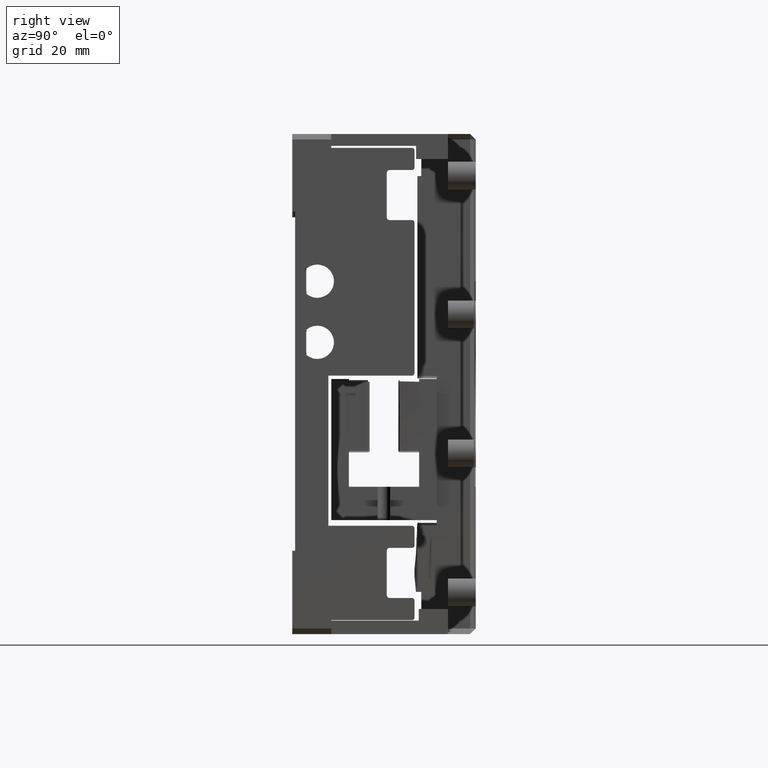
[diagram: clean part render]
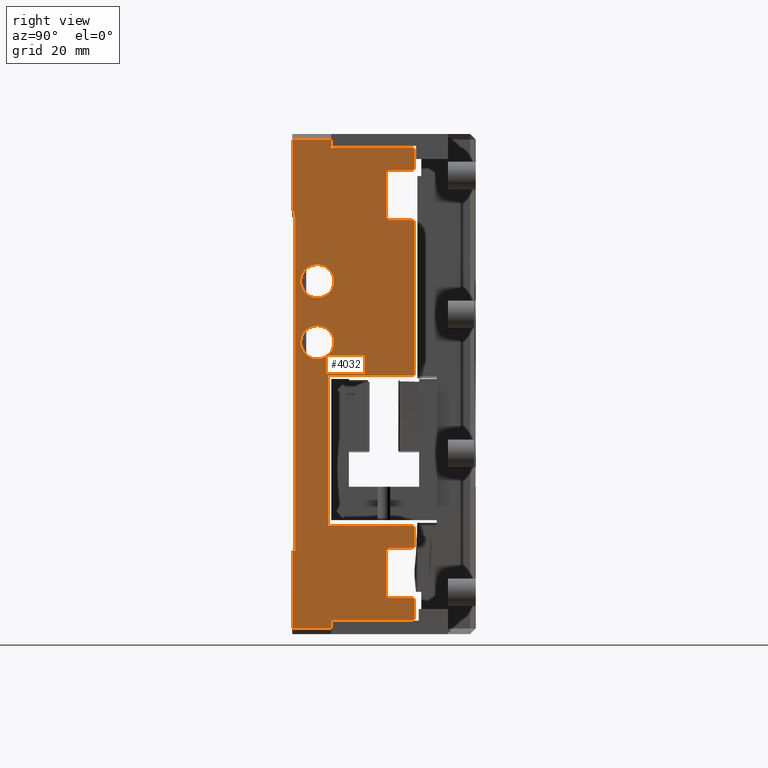
[diagram: same view with one face highlighted and labeled with its STEP entity id]
A machine part, right view. The second image highlights one B-rep face of the part: STEP entity #4032.
In plain terms, the highlighted planar face has unit normal (-1, 0, 0).
Its self-contained STEP definition (entity closure, byte-faithful):
#62 = CARTESIAN_POINT ( 'NONE',  ( 90.00000000000005684, 20.99999999999997868, 19.50000000000007105 ) ) ;
#405 = VECTOR ( 'NONE', #7556, 1000.000000000000000 ) ;
#671 = ORIENTED_EDGE ( 'NONE', *, *, #10774, .F. ) ;
#833 = DIRECTION ( 'NONE',  ( -1.000000000000000000, 5.034521060366343915E-17, 6.757893243623049656E-16 ) ) ;
#894 = DIRECTION ( 'NONE',  ( -5.034521060366351311E-17, -1.000000000000000000, 2.970304752177819825E-33 ) ) ;
#966 = CARTESIAN_POINT ( 'NONE',  ( 90.00000000000000000, 20.99999999999998224, 15.49999999999998757 ) ) ;
#980 = ORIENTED_EDGE ( 'NONE', *, *, #1159, .T. ) ;
#1159 = EDGE_CURVE ( 'NONE', #16432, #19255, #7203, .T. ) ;
#1411 = LINE ( 'NONE', #12128, #5489 ) ;
#1472 = DIRECTION ( 'NONE',  ( 5.034521060366351311E-17, 1.000000000000000000, -2.970304752177819825E-33 ) ) ;
#1571 = VERTEX_POINT ( 'NONE', #28341 ) ;
#1625 = EDGE_CURVE ( 'NONE', #2986, #2986, #24944, .T. ) ;
#1684 = DIRECTION ( 'NONE',  ( -1.000000000000000000, 5.034521060366343915E-17, 6.757893243623049656E-16 ) ) ;
#1791 = VECTOR ( 'NONE', #14237, 1000.000000000000000 ) ;
#1806 = VECTOR ( 'NONE', #19901, 1000.000000000000000 ) ;
#1841 = EDGE_CURVE ( 'NONE', #11449, #15249, #27120, .T. ) ;
#1906 = EDGE_CURVE ( 'NONE', #15102, #21535, #5571, .T. ) ;
#1929 = CARTESIAN_POINT ( 'NONE',  ( 90.00000000000002842, -2.168404344971008868E-14, 89.00000000000000000 ) ) ;
#2209 = AXIS2_PLACEMENT_3D ( 'NONE', #5642, #16347, #2859 ) ;
#2257 = ORIENTED_EDGE ( 'NONE', *, *, #7761, .F. ) ;
#2300 = CIRCLE ( 'NONE', #26172, 2.999999999999995559 ) ;
#2349 = FACE_BOUND ( 'NONE', #8921, .T. ) ;
#2374 = DIRECTION ( 'NONE',  ( -5.034521060366351311E-17, -1.000000000000000000, 2.970304752177819825E-33 ) ) ;
#2384 = DIRECTION ( 'NONE',  ( -5.899875512610681084E-17, -0.000000000000000000, -1.000000000000000000 ) ) ;
#2412 = DIRECTION ( 'NONE',  ( 0.000000000000000000, 0.000000000000000000, -1.000000000000000000 ) ) ;
#2432 = LINE ( 'NONE', #9601, #5857 ) ;
#2454 = DIRECTION ( 'NONE',  ( 0.000000000000000000, 0.000000000000000000, 1.000000000000000000 ) ) ;
#2600 = DIRECTION ( 'NONE',  ( 0.000000000000000000, 0.000000000000000000, -1.000000000000000000 ) ) ;
#2813 = CARTESIAN_POINT ( 'NONE',  ( 90.00000000000002842, 21.49999999999997868, 90.00000000000000000 ) ) ;
#2859 = DIRECTION ( 'NONE',  ( 0.000000000000000000, 0.000000000000000000, 1.000000000000000000 ) ) ;
#2979 = ORIENTED_EDGE ( 'NONE', *, *, #16234, .F. ) ;
#2986 = VERTEX_POINT ( 'NONE', #14009 ) ;
#3148 = VERTEX_POINT ( 'NONE', #24003 ) ;
#3163 = DIRECTION ( 'NONE',  ( -5.034521060366351311E-17, -1.000000000000000000, 2.970304752177819825E-33 ) ) ;
#3222 = ORIENTED_EDGE ( 'NONE', *, *, #12570, .F. ) ;
#3367 = CARTESIAN_POINT ( 'NONE',  ( 90.00000000000000000, 16.49999999999997868, 7.000000000000000000 ) ) ;
#3370 = VERTEX_POINT ( 'NONE', #23362 ) ;
#3603 = EDGE_CURVE ( 'NONE', #16432, #20093, #28885, .T. ) ;
#3609 = VERTEX_POINT ( 'NONE', #24795 ) ;
#3623 = CARTESIAN_POINT ( 'NONE',  ( 90.00000000000002842, 6.499999999999987566, 2.500000000000005329 ) ) ;
#4027 = VERTEX_POINT ( 'NONE', #4099 ) ;
#4032 = ADVANCED_FACE ( 'NONE', ( #4520, #4383, #2349 ), #11136, .F. ) ;
#4072 = ORIENTED_EDGE ( 'NONE', *, *, #12612, .F. ) ;
#4093 = AXIS2_PLACEMENT_3D ( 'NONE', #17846, #7146, #17982 ) ;
#4098 = VERTEX_POINT ( 'NONE', #17739 ) ;
#4099 = CARTESIAN_POINT ( 'NONE',  ( 90.00000000000002842, -0.5000000000000122125, 14.99999999999998579 ) ) ;
#4137 = VERTEX_POINT ( 'NONE', #4249 ) ;
#4249 = CARTESIAN_POINT ( 'NONE',  ( 90.00000000000000000, 21.49999999999997868, 15.99999999999998579 ) ) ;
#4303 = LINE ( 'NONE', #27312, #5089 ) ;
#4383 = FACE_BOUND ( 'NONE', #21882, .T. ) ;
#4494 = CARTESIAN_POINT ( 'NONE',  ( 89.99999999999997158, 20.99999999999998224, 5.999999999999996447 ) ) ;
#4520 = FACE_OUTER_BOUND ( 'NONE', #8517, .T. ) ;
#4538 = CIRCLE ( 'NONE', #8300, 0.5000000000000004441 ) ;
#4566 = CIRCLE ( 'NONE', #23280, 0.5000000000000004441 ) ;
#4646 = CARTESIAN_POINT ( 'NONE',  ( 90.00000000000002842, 16.99999999999997868, 82.99999999999990052 ) ) ;
#4686 = CARTESIAN_POINT ( 'NONE',  ( 90.00000000000002842, -0.5000000000000204281, 90.00000000000000000 ) ) ;
#4920 = ORIENTED_EDGE ( 'NONE', *, *, #5123, .F. ) ;
#5057 = CARTESIAN_POINT ( 'NONE',  ( 90.00000000000002842, 21.49999999999998224, 73.99999999999992895 ) ) ;
#5089 = VECTOR ( 'NONE', #18372, 1000.000000000000000 ) ;
#5123 = EDGE_CURVE ( 'NONE', #24506, #19255, #8614, .T. ) ;
#5244 = ORIENTED_EDGE ( 'NONE', *, *, #22877, .F. ) ;
#5337 = DIRECTION ( 'NONE',  ( -1.000000000000000000, 5.034521060366343915E-17, 6.757893243623049656E-16 ) ) ;
#5338 = CARTESIAN_POINT ( 'NONE',  ( 90.00000000000000000, 21.49999999999997868, 5.999999999999999112 ) ) ;
#5451 = EDGE_CURVE ( 'NONE', #12013, #21191, #7826, .T. ) ;
#5486 = DIRECTION ( 'NONE',  ( 0.000000000000000000, 0.000000000000000000, -1.000000000000000000 ) ) ;
#5489 = VECTOR ( 'NONE', #27770, 1000.000000000000000 ) ;
#5571 = LINE ( 'NONE', #18763, #10920 ) ;
#5642 = CARTESIAN_POINT ( 'NONE',  ( 90.00000000000000000, 20.99999999999998224, 47.00000000000002132 ) ) ;
#5664 = ORIENTED_EDGE ( 'NONE', *, *, #20519, .T. ) ;
#5797 = AXIS2_PLACEMENT_3D ( 'NONE', #28871, #11013, #24345 ) ;
#5857 = VECTOR ( 'NONE', #6984, 1000.000000000000000 ) ;
#5884 = CARTESIAN_POINT ( 'NONE',  ( 90.00000000000002842, 3.999999999999981792, 52.49999999999998579 ) ) ;
#5927 = AXIS2_PLACEMENT_3D ( 'NONE', #10067, #21769, #8447 ) ;
#6237 = AXIS2_PLACEMENT_3D ( 'NONE', #27314, #11342, #2412 ) ;
#6437 = EDGE_CURVE ( 'NONE', #3370, #14278, #13967, .T. ) ;
#6519 = ORIENTED_EDGE ( 'NONE', *, *, #7538, .F. ) ;
#6711 = CARTESIAN_POINT ( 'NONE',  ( 90.00000000000002842, -2.168404344971008868E-14, 15.49999999999998579 ) ) ;
#6755 = EDGE_CURVE ( 'NONE', #18389, #8162, #11606, .T. ) ;
#6801 = ORIENTED_EDGE ( 'NONE', *, *, #25048, .T. ) ;
#6904 = VECTOR ( 'NONE', #14197, 1000.000000000000000 ) ;
#6984 = DIRECTION ( 'NONE',  ( -5.899875512610681084E-17, -0.000000000000000000, -1.000000000000000000 ) ) ;
#7078 = CARTESIAN_POINT ( 'NONE',  ( 90.00000000000002842, -2.168404344971008868E-14, 1.000000000000056399 ) ) ;
#7117 = LINE ( 'NONE', #11355, #8872 ) ;
#7146 = DIRECTION ( 'NONE',  ( -1.000000000000000000, 5.034521060366343915E-17, 6.757893243623049656E-16 ) ) ;
#7189 = LINE ( 'NONE', #4686, #19124 ) ;
#7203 = CIRCLE ( 'NONE', #5797, 0.5000000000000004441 ) ;
#7292 = ORIENTED_EDGE ( 'NONE', *, *, #27304, .F. ) ;
#7376 = VECTOR ( 'NONE', #894, 1000.000000000000000 ) ;
#7450 = EDGE_CURVE ( 'NONE', #16055, #19977, #7189, .T. ) ;
#7455 = CARTESIAN_POINT ( 'NONE',  ( 90.00000000000002842, -2.168404344971008868E-14, 14.99999999999998579 ) ) ;
#7511 = CARTESIAN_POINT ( 'NONE',  ( 90.00000000000002842, -1.368001494909225332E-14, 14.99999999999999289 ) ) ;
#7525 = CARTESIAN_POINT ( 'NONE',  ( 90.00000000000002842, 5.999999999999984901, 19.50000000000001776 ) ) ;
#7538 = EDGE_CURVE ( 'NONE', #3148, #3370, #27970, .T. ) ;
#7556 = DIRECTION ( 'NONE',  ( -0.000000000000000000, -1.110223024625155801E-16, 1.000000000000000000 ) ) ;
#7761 = EDGE_CURVE ( 'NONE', #23986, #3148, #12592, .T. ) ;
#7826 = CIRCLE ( 'NONE', #5927, 0.5000000000000000000 ) ;
#7828 = VERTEX_POINT ( 'NONE', #16919 ) ;
#7845 = CARTESIAN_POINT ( 'NONE',  ( 90.00000000000000000, 16.49999999999997868, 14.99999999999999112 ) ) ;
#7939 = CARTESIAN_POINT ( 'NONE',  ( 90.00000000000002842, 6.499999999999976907, 89.00000000000000000 ) ) ;
#8025 = DIRECTION ( 'NONE',  ( 0.000000000000000000, 0.000000000000000000, -1.000000000000000000 ) ) ;
#8055 = CARTESIAN_POINT ( 'NONE',  ( 90.00000000000002842, 21.49999999999997868, 90.00000000000000000 ) ) ;
#8100 = CARTESIAN_POINT ( 'NONE',  ( 90.00000000000002842, 20.99999999999998224, 87.49999999999992895 ) ) ;
#8162 = VERTEX_POINT ( 'NONE', #5338 ) ;
#8213 = CARTESIAN_POINT ( 'NONE',  ( 90.00000000000002842, -0.5000000000000200950, 75.99999999999998579 ) ) ;
#8221 = EDGE_CURVE ( 'NONE', #13101, #15040, #17059, .T. ) ;
#8300 = AXIS2_PLACEMENT_3D ( 'NONE', #20723, #5337, #5486 ) ;
#8304 = CARTESIAN_POINT ( 'NONE',  ( 90.00000000000002842, 5.999999999999984013, 90.00000000000000000 ) ) ;
#8330 = CIRCLE ( 'NONE', #4093, 0.5000000000000004441 ) ;
#8349 = VECTOR ( 'NONE', #15431, 1000.000000000000000 ) ;
#8419 = CARTESIAN_POINT ( 'NONE',  ( 90.00000000000005684, 20.99999999999998224, 19.00000000000012434 ) ) ;
#8447 = DIRECTION ( 'NONE',  ( 0.000000000000000000, 0.000000000000000000, -1.000000000000000000 ) ) ;
#8485 = EDGE_CURVE ( 'NONE', #7828, #7828, #2300, .T. ) ;
#8487 = LINE ( 'NONE', #26221, #23787 ) ;
#8517 = EDGE_LOOP ( 'NONE', ( #7292, #22094, #18340, #11379, #15289, #21243, #16720, #6519, #2257, #15426, #22713, #26754, #17125, #11480, #16712, #17666, #671, #27367, #5664, #15560, #11395, #3222, #19451, #4072, #6801, #27838, #980, #4920, #13259, #13305, #5244, #12424, #2979, #9255, #25308, #12912 ) ) ;
#8526 = VERTEX_POINT ( 'NONE', #12787 ) ;
#8614 = LINE ( 'NONE', #6711, #8726 ) ;
#8726 = VECTOR ( 'NONE', #24865, 1000.000000000000000 ) ;
#8872 = VECTOR ( 'NONE', #25280, 1000.000000000000000 ) ;
#8921 = EDGE_LOOP ( 'NONE', ( #15701 ) ) ;
#9005 = EDGE_CURVE ( 'NONE', #12333, #20735, #7117, .T. ) ;
#9255 = ORIENTED_EDGE ( 'NONE', *, *, #21412, .F. ) ;
#9587 = VECTOR ( 'NONE', #27139, 1000.000000000000000 ) ;
#9601 = CARTESIAN_POINT ( 'NONE',  ( 90.00000000000002842, 21.49999999999997868, 90.00000000000000000 ) ) ;
#10067 = CARTESIAN_POINT ( 'NONE',  ( 89.99999999999997158, 20.99999999999998224, 3.000000000000018208 ) ) ;
#10225 = VERTEX_POINT ( 'NONE', #14758 ) ;
#10409 = CARTESIAN_POINT ( 'NONE',  ( 90.00000000000002842, -2.168404344971008868E-14, 6.500000000000005329 ) ) ;
#10580 = CARTESIAN_POINT ( 'NONE',  ( 89.99999999999998579, 20.99999999999998224, 15.99999999999998934 ) ) ;
#10730 = EDGE_CURVE ( 'NONE', #21535, #16055, #22098, .T. ) ;
#10774 = EDGE_CURVE ( 'NONE', #19899, #4027, #8487, .T. ) ;
#10920 = VECTOR ( 'NONE', #14530, 1000.000000000000000 ) ;
#11013 = DIRECTION ( 'NONE',  ( -1.000000000000000000, 5.034521060366343915E-17, 6.757893243623049656E-16 ) ) ;
#11136 = PLANE ( 'NONE',  #22548 ) ;
#11280 = DIRECTION ( 'NONE',  ( -1.000000000000000000, 5.034521060366351311E-17, 5.899875512610681084E-17 ) ) ;
#11342 = DIRECTION ( 'NONE',  ( 1.000000000000000000, -5.034521060366351311E-17, -5.899875512610676154E-17 ) ) ;
#11355 = CARTESIAN_POINT ( 'NONE',  ( 90.00000000000002842, -2.168404344971008868E-14, 74.49999999999991473 ) ) ;
#11379 = ORIENTED_EDGE ( 'NONE', *, *, #1841, .F. ) ;
#11395 = ORIENTED_EDGE ( 'NONE', *, *, #5451, .F. ) ;
#11430 = DIRECTION ( 'NONE',  ( -5.899875512610681084E-17, -0.000000000000000000, -1.000000000000000000 ) ) ;
#11449 = VERTEX_POINT ( 'NONE', #14542 ) ;
#11480 = ORIENTED_EDGE ( 'NONE', *, *, #10730, .F. ) ;
#11606 = CIRCLE ( 'NONE', #12535, 0.5000000000000004441 ) ;
#11926 = LINE ( 'NONE', #18807, #17235 ) ;
#12013 = VERTEX_POINT ( 'NONE', #24121 ) ;
#12128 = CARTESIAN_POINT ( 'NONE',  ( 90.00000000000002842, -2.168404344971008868E-14, 19.50000000000001776 ) ) ;
#12199 = LINE ( 'NONE', #20817, #7376 ) ;
#12230 = DIRECTION ( 'NONE',  ( -5.899875512610681084E-17, -0.000000000000000000, -1.000000000000000000 ) ) ;
#12333 = VERTEX_POINT ( 'NONE', #18048 ) ;
#12346 = LINE ( 'NONE', #27999, #19414 ) ;
#12424 = ORIENTED_EDGE ( 'NONE', *, *, #24518, .F. ) ;
#12442 = VECTOR ( 'NONE', #2374, 1000.000000000000000 ) ;
#12535 = AXIS2_PLACEMENT_3D ( 'NONE', #4494, #25014, #2600 ) ;
#12570 = EDGE_CURVE ( 'NONE', #8162, #12013, #13963, .T. ) ;
#12592 = CIRCLE ( 'NONE', #23346, 0.5000000000000004441 ) ;
#12612 = EDGE_CURVE ( 'NONE', #15608, #18389, #19064, .T. ) ;
#12787 = CARTESIAN_POINT ( 'NONE',  ( 90.00000000000001421, 20.99999999999998224, 46.50000000000002132 ) ) ;
#12912 = ORIENTED_EDGE ( 'NONE', *, *, #13718, .F. ) ;
#13051 = CARTESIAN_POINT ( 'NONE',  ( 90.00000000000002842, -2.168404344971008868E-14, 75.99999999999998579 ) ) ;
#13083 = EDGE_CURVE ( 'NONE', #13101, #23986, #12346, .T. ) ;
#13101 = VERTEX_POINT ( 'NONE', #23741 ) ;
#13259 = ORIENTED_EDGE ( 'NONE', *, *, #14777, .F. ) ;
#13305 = ORIENTED_EDGE ( 'NONE', *, *, #13365, .F. ) ;
#13330 = DIRECTION ( 'NONE',  ( -1.000000000000000000, 5.034521060366324810E-17, 5.899875512610671223E-17 ) ) ;
#13365 = EDGE_CURVE ( 'NONE', #1571, #4137, #2432, .T. ) ;
#13377 = LINE ( 'NONE', #22283, #12442 ) ;
#13615 = DIRECTION ( 'NONE',  ( -1.000000000000000000, 5.034521060366343915E-17, 6.757893243623049656E-16 ) ) ;
#13718 = EDGE_CURVE ( 'NONE', #16365, #3609, #11926, .T. ) ;
#13963 = LINE ( 'NONE', #2813, #9587 ) ;
#13967 = CIRCLE ( 'NONE', #21426, 0.5000000000000004441 ) ;
#14009 = CARTESIAN_POINT ( 'NONE',  ( 90.00000000000002842, 3.999999999999980016, 60.49999999999997158 ) ) ;
#14054 = LINE ( 'NONE', #27059, #15886 ) ;
#14197 = DIRECTION ( 'NONE',  ( 5.034521060366351311E-17, 1.000000000000000000, -2.970304752177819825E-33 ) ) ;
#14237 = DIRECTION ( 'NONE',  ( -5.899875512610681084E-17, -0.000000000000000000, -1.000000000000000000 ) ) ;
#14278 = VERTEX_POINT ( 'NONE', #14890 ) ;
#14326 = CARTESIAN_POINT ( 'NONE',  ( 90.00000000000000000, 16.99999999999997868, 6.500000000000000888 ) ) ;
#14530 = DIRECTION ( 'NONE',  ( -0.000000000000000000, -1.110223024625155801E-16, 1.000000000000000000 ) ) ;
#14542 = CARTESIAN_POINT ( 'NONE',  ( 90.00000000000002842, 16.49999999999997868, 82.99999999999990052 ) ) ;
#14758 = CARTESIAN_POINT ( 'NONE',  ( 90.00000000000002842, 5.999999999999984013, 46.50000000000002132 ) ) ;
#14777 = EDGE_CURVE ( 'NONE', #4137, #24506, #23259, .T. ) ;
#14890 = CARTESIAN_POINT ( 'NONE',  ( 90.00000000000002842, 20.99999999999998224, 83.49999999999991473 ) ) ;
#15008 = CARTESIAN_POINT ( 'NONE',  ( 90.00000000000002842, 20.99999999999998224, 74.49999999999992895 ) ) ;
#15040 = VERTEX_POINT ( 'NONE', #7939 ) ;
#15102 = VERTEX_POINT ( 'NONE', #7511 ) ;
#15151 = VECTOR ( 'NONE', #25078, 1000.000000000000000 ) ;
#15160 = DIRECTION ( 'NONE',  ( 0.000000000000000000, 0.000000000000000000, 1.000000000000000000 ) ) ;
#15249 = VERTEX_POINT ( 'NONE', #16691 ) ;
#15289 = ORIENTED_EDGE ( 'NONE', *, *, #25986, .T. ) ;
#15362 = VERTEX_POINT ( 'NONE', #3623 ) ;
#15385 = DIRECTION ( 'NONE',  ( 5.899875512610681084E-17, 0.000000000000000000, 1.000000000000000000 ) ) ;
#15426 = ORIENTED_EDGE ( 'NONE', *, *, #13083, .F. ) ;
#15431 = DIRECTION ( 'NONE',  ( 5.034521060366351311E-17, 1.000000000000000000, -2.970304752177819825E-33 ) ) ;
#15447 = CARTESIAN_POINT ( 'NONE',  ( 90.00000000000002842, 16.49999999999997868, 90.00000000000000000 ) ) ;
#15560 = ORIENTED_EDGE ( 'NONE', *, *, #18170, .F. ) ;
#15608 = VERTEX_POINT ( 'NONE', #14326 ) ;
#15701 = ORIENTED_EDGE ( 'NONE', *, *, #8485, .F. ) ;
#15826 = CARTESIAN_POINT ( 'NONE',  ( 90.00000000000002842, -2.168404344971008868E-14, 90.00000000000000000 ) ) ;
#15886 = VECTOR ( 'NONE', #3163, 1000.000000000000000 ) ;
#15905 = EDGE_CURVE ( 'NONE', #28545, #19899, #19988, .T. ) ;
#15910 = CARTESIAN_POINT ( 'NONE',  ( 90.00000000000002842, 6.499999999999987566, 1.000000000000048406 ) ) ;
#16055 = VERTEX_POINT ( 'NONE', #8213 ) ;
#16234 = EDGE_CURVE ( 'NONE', #10225, #25352, #28365, .T. ) ;
#16347 = DIRECTION ( 'NONE',  ( -1.000000000000000000, 5.034521060366351311E-17, 5.899875512610666293E-17 ) ) ;
#16365 = VERTEX_POINT ( 'NONE', #5057 ) ;
#16432 = VERTEX_POINT ( 'NONE', #7845 ) ;
#16691 = CARTESIAN_POINT ( 'NONE',  ( 90.00000000000002842, 16.49999999999997868, 74.99999999999992895 ) ) ;
#16712 = ORIENTED_EDGE ( 'NONE', *, *, #1906, .F. ) ;
#16720 = ORIENTED_EDGE ( 'NONE', *, *, #6437, .F. ) ;
#16919 = CARTESIAN_POINT ( 'NONE',  ( 90.00000000000002842, 3.999999999999981792, 49.49999999999998579 ) ) ;
#17016 = DIRECTION ( 'NONE',  ( 5.034521060366351311E-17, 1.000000000000000000, -2.970304752177819825E-33 ) ) ;
#17059 = LINE ( 'NONE', #18686, #405 ) ;
#17125 = ORIENTED_EDGE ( 'NONE', *, *, #7450, .F. ) ;
#17235 = VECTOR ( 'NONE', #12230, 1000.000000000000000 ) ;
#17397 = DIRECTION ( 'NONE',  ( -5.899875512610681084E-17, -0.000000000000000000, -1.000000000000000000 ) ) ;
#17666 = ORIENTED_EDGE ( 'NONE', *, *, #26928, .F. ) ;
#17715 = CARTESIAN_POINT ( 'NONE',  ( 90.00000000000002842, 20.99999999999998224, 86.99999999999994316 ) ) ;
#17716 = AXIS2_PLACEMENT_3D ( 'NONE', #8419, #21597, #15160 ) ;
#17739 = CARTESIAN_POINT ( 'NONE',  ( 90.00000000000002842, 16.99999999999997868, 83.49999999999991473 ) ) ;
#17768 = DIRECTION ( 'NONE',  ( -1.000000000000000000, 5.034521060366343915E-17, 6.757893243623049656E-16 ) ) ;
#17846 = CARTESIAN_POINT ( 'NONE',  ( 89.99999999999997158, 16.99999999999997868, 6.999999999999997335 ) ) ;
#17982 = DIRECTION ( 'NONE',  ( 0.000000000000000000, 0.000000000000000000, 1.000000000000000000 ) ) ;
#18048 = CARTESIAN_POINT ( 'NONE',  ( 90.00000000000002842, 16.99999999999997868, 74.49999999999992895 ) ) ;
#18170 = EDGE_CURVE ( 'NONE', #21191, #15362, #13377, .T. ) ;
#18340 = ORIENTED_EDGE ( 'NONE', *, *, #27001, .T. ) ;
#18372 = DIRECTION ( 'NONE',  ( -0.000000000000000000, -1.110223024625155801E-16, 1.000000000000000000 ) ) ;
#18389 = VERTEX_POINT ( 'NONE', #21109 ) ;
#18571 = LINE ( 'NONE', #7455, #6904 ) ;
#18686 = CARTESIAN_POINT ( 'NONE',  ( 90.00000000000002842, 6.499999999999982236, 44.99999999999998579 ) ) ;
#18763 = CARTESIAN_POINT ( 'NONE',  ( 90.00000000000001421, -1.701068402296771821E-14, 44.99999999999998579 ) ) ;
#18807 = CARTESIAN_POINT ( 'NONE',  ( 90.00000000000002842, 21.49999999999997868, 90.00000000000000000 ) ) ;
#19010 = CARTESIAN_POINT ( 'NONE',  ( 90.00000000000002842, 16.99999999999997868, 74.99999999999992895 ) ) ;
#19064 = LINE ( 'NONE', #10409, #25502 ) ;
#19124 = VECTOR ( 'NONE', #22708, 1000.000000000000000 ) ;
#19255 = VERTEX_POINT ( 'NONE', #27607 ) ;
#19414 = VECTOR ( 'NONE', #17016, 1000.000000000000000 ) ;
#19451 = ORIENTED_EDGE ( 'NONE', *, *, #6755, .F. ) ;
#19567 = DIRECTION ( 'NONE',  ( 0.000000000000000000, 0.000000000000000000, -1.000000000000000000 ) ) ;
#19892 = EDGE_CURVE ( 'NONE', #19977, #15040, #26542, .T. ) ;
#19899 = VERTEX_POINT ( 'NONE', #24343 ) ;
#19901 = DIRECTION ( 'NONE',  ( -5.034521060366351311E-17, -1.000000000000000000, 2.970304752177819825E-33 ) ) ;
#19927 = VECTOR ( 'NONE', #2384, 1000.000000000000000 ) ;
#19977 = VERTEX_POINT ( 'NONE', #25064 ) ;
#19988 = LINE ( 'NONE', #7078, #15151 ) ;
#20093 = VERTEX_POINT ( 'NONE', #3367 ) ;
#20519 = EDGE_CURVE ( 'NONE', #28545, #15362, #4303, .T. ) ;
#20646 = CARTESIAN_POINT ( 'NONE',  ( 90.00000000000000000, 20.99999999999998224, 2.500000000000015099 ) ) ;
#20723 = CARTESIAN_POINT ( 'NONE',  ( 90.00000000000002842, 20.99999999999998224, 73.99999999999992895 ) ) ;
#20735 = VERTEX_POINT ( 'NONE', #15008 ) ;
#20817 = CARTESIAN_POINT ( 'NONE',  ( 90.00000000000002842, -2.168404344971008868E-14, 83.49999999999991473 ) ) ;
#21053 = CARTESIAN_POINT ( 'NONE',  ( 90.00000000000002842, -2.045237539930570348E-14, 75.99999999999998579 ) ) ;
#21109 = CARTESIAN_POINT ( 'NONE',  ( 90.00000000000000000, 20.99999999999998224, 6.500000000000000888 ) ) ;
#21191 = VERTEX_POINT ( 'NONE', #20646 ) ;
#21243 = ORIENTED_EDGE ( 'NONE', *, *, #24218, .F. ) ;
#21412 = EDGE_CURVE ( 'NONE', #8526, #10225, #14054, .T. ) ;
#21426 = AXIS2_PLACEMENT_3D ( 'NONE', #23954, #1684, #19567 ) ;
#21535 = VERTEX_POINT ( 'NONE', #21053 ) ;
#21597 = DIRECTION ( 'NONE',  ( -1.000000000000000000, 5.034521060366351311E-17, 5.899875512610666293E-17 ) ) ;
#21673 = VERTEX_POINT ( 'NONE', #62 ) ;
#21769 = DIRECTION ( 'NONE',  ( -1.000000000000000000, 5.034521060366351311E-17, 5.899875512610671223E-17 ) ) ;
#21844 = CIRCLE ( 'NONE', #2209, 0.5000000000000004441 ) ;
#21882 = EDGE_LOOP ( 'NONE', ( #27529 ) ) ;
#21918 = CIRCLE ( 'NONE', #17716, 0.5000000000000004441 ) ;
#22094 = ORIENTED_EDGE ( 'NONE', *, *, #9005, .F. ) ;
#22098 = LINE ( 'NONE', #13051, #1806 ) ;
#22118 = DIRECTION ( 'NONE',  ( 5.899875512610681084E-17, 0.000000000000000000, 1.000000000000000000 ) ) ;
#22283 = CARTESIAN_POINT ( 'NONE',  ( 90.00000000000002842, -2.168404344971008868E-14, 2.500000000000002220 ) ) ;
#22306 = AXIS2_PLACEMENT_3D ( 'NONE', #10580, #17768, #23770 ) ;
#22427 = CARTESIAN_POINT ( 'NONE',  ( 90.00000000000002842, 16.49999999999997868, 90.00000000000000000 ) ) ;
#22548 = AXIS2_PLACEMENT_3D ( 'NONE', #15826, #11280, #22118 ) ;
#22708 = DIRECTION ( 'NONE',  ( 5.899875512610681084E-17, 0.000000000000000000, 1.000000000000000000 ) ) ;
#22713 = ORIENTED_EDGE ( 'NONE', *, *, #8221, .T. ) ;
#22877 = EDGE_CURVE ( 'NONE', #21673, #1571, #21918, .T. ) ;
#23259 = CIRCLE ( 'NONE', #22306, 0.5000000000000004441 ) ;
#23280 = AXIS2_PLACEMENT_3D ( 'NONE', #19010, #833, #8025 ) ;
#23346 = AXIS2_PLACEMENT_3D ( 'NONE', #17715, #13330, #28396 ) ;
#23362 = CARTESIAN_POINT ( 'NONE',  ( 90.00000000000002842, 21.49999999999997868, 83.99999999999992895 ) ) ;
#23741 = CARTESIAN_POINT ( 'NONE',  ( 90.00000000000002842, 6.499999999999977796, 87.49999999999992895 ) ) ;
#23770 = DIRECTION ( 'NONE',  ( 0.000000000000000000, 0.000000000000000000, 1.000000000000000000 ) ) ;
#23787 = VECTOR ( 'NONE', #15385, 1000.000000000000000 ) ;
#23954 = CARTESIAN_POINT ( 'NONE',  ( 90.00000000000002842, 20.99999999999998224, 83.99999999999992895 ) ) ;
#23986 = VERTEX_POINT ( 'NONE', #8100 ) ;
#24003 = CARTESIAN_POINT ( 'NONE',  ( 90.00000000000002842, 21.49999999999997868, 86.99999999999994316 ) ) ;
#24023 = VECTOR ( 'NONE', #11430, 1000.000000000000000 ) ;
#24121 = CARTESIAN_POINT ( 'NONE',  ( 90.00000000000000000, 21.49999999999997868, 3.000000000000022649 ) ) ;
#24218 = EDGE_CURVE ( 'NONE', #14278, #4098, #12199, .T. ) ;
#24343 = CARTESIAN_POINT ( 'NONE',  ( 90.00000000000002842, -0.5000000000000118794, 1.000000000000057510 ) ) ;
#24345 = DIRECTION ( 'NONE',  ( 0.000000000000000000, 0.000000000000000000, -1.000000000000000000 ) ) ;
#24496 = VECTOR ( 'NONE', #17397, 1000.000000000000000 ) ;
#24506 = VERTEX_POINT ( 'NONE', #966 ) ;
#24518 = EDGE_CURVE ( 'NONE', #25352, #21673, #1411, .T. ) ;
#24795 = CARTESIAN_POINT ( 'NONE',  ( 90.00000000000001421, 21.49999999999998579, 47.00000000000002132 ) ) ;
#24865 = DIRECTION ( 'NONE',  ( -5.034521060366351311E-17, -1.000000000000000000, 2.970304752177819825E-33 ) ) ;
#24944 = CIRCLE ( 'NONE', #6237, 3.000000000000002665 ) ;
#25014 = DIRECTION ( 'NONE',  ( -1.000000000000000000, 5.034521060366343915E-17, 6.757893243623049656E-16 ) ) ;
#25048 = EDGE_CURVE ( 'NONE', #15608, #20093, #8330, .T. ) ;
#25064 = CARTESIAN_POINT ( 'NONE',  ( 90.00000000000004263, -0.5000000000000213163, 88.99999999999998579 ) ) ;
#25078 = DIRECTION ( 'NONE',  ( -5.034521060366351311E-17, -1.000000000000000000, 2.970304752177819825E-33 ) ) ;
#25195 = CIRCLE ( 'NONE', #28918, 0.5000000000000004441 ) ;
#25280 = DIRECTION ( 'NONE',  ( 5.034521060366351311E-17, 1.000000000000000000, -2.970304752177819825E-33 ) ) ;
#25308 = ORIENTED_EDGE ( 'NONE', *, *, #26275, .F. ) ;
#25352 = VERTEX_POINT ( 'NONE', #7525 ) ;
#25502 = VECTOR ( 'NONE', #1472, 1000.000000000000000 ) ;
#25952 = DIRECTION ( 'NONE',  ( 1.000000000000000000, -5.034521060366351311E-17, -5.899875512610676154E-17 ) ) ;
#25986 = EDGE_CURVE ( 'NONE', #11449, #4098, #25195, .T. ) ;
#26172 = AXIS2_PLACEMENT_3D ( 'NONE', #5884, #25952, #26386 ) ;
#26221 = CARTESIAN_POINT ( 'NONE',  ( 90.00000000000002842, -0.5000000000000118794, 90.00000000000000000 ) ) ;
#26275 = EDGE_CURVE ( 'NONE', #3609, #8526, #21844, .T. ) ;
#26386 = DIRECTION ( 'NONE',  ( 0.000000000000000000, 0.000000000000000000, -1.000000000000000000 ) ) ;
#26542 = LINE ( 'NONE', #1929, #8349 ) ;
#26754 = ORIENTED_EDGE ( 'NONE', *, *, #19892, .F. ) ;
#26928 = EDGE_CURVE ( 'NONE', #4027, #15102, #18571, .T. ) ;
#27001 = EDGE_CURVE ( 'NONE', #12333, #15249, #4566, .T. ) ;
#27059 = CARTESIAN_POINT ( 'NONE',  ( 90.00000000000002842, -2.168404344971008868E-14, 46.50000000000002132 ) ) ;
#27120 = LINE ( 'NONE', #22427, #24023 ) ;
#27139 = DIRECTION ( 'NONE',  ( -5.899875512610681084E-17, -0.000000000000000000, -1.000000000000000000 ) ) ;
#27304 = EDGE_CURVE ( 'NONE', #20735, #16365, #4538, .T. ) ;
#27312 = CARTESIAN_POINT ( 'NONE',  ( 90.00000000000002842, 6.499999999999982236, 44.99999999999998579 ) ) ;
#27314 = CARTESIAN_POINT ( 'NONE',  ( 90.00000000000002842, 3.999999999999980016, 63.49999999999997158 ) ) ;
#27367 = ORIENTED_EDGE ( 'NONE', *, *, #15905, .F. ) ;
#27529 = ORIENTED_EDGE ( 'NONE', *, *, #1625, .F. ) ;
#27607 = CARTESIAN_POINT ( 'NONE',  ( 90.00000000000000000, 16.99999999999997868, 15.49999999999998757 ) ) ;
#27770 = DIRECTION ( 'NONE',  ( 5.034521060366351311E-17, 1.000000000000000000, -2.970304752177819825E-33 ) ) ;
#27838 = ORIENTED_EDGE ( 'NONE', *, *, #3603, .F. ) ;
#27970 = LINE ( 'NONE', #8055, #1791 ) ;
#27999 = CARTESIAN_POINT ( 'NONE',  ( 90.00000000000002842, -2.168404344971008868E-14, 87.49999999999991473 ) ) ;
#28341 = CARTESIAN_POINT ( 'NONE',  ( 90.00000000000004263, 21.49999999999997868, 19.00000000000012790 ) ) ;
#28365 = LINE ( 'NONE', #8304, #24496 ) ;
#28396 = DIRECTION ( 'NONE',  ( 0.000000000000000000, 0.000000000000000000, -1.000000000000000000 ) ) ;
#28545 = VERTEX_POINT ( 'NONE', #15910 ) ;
#28871 = CARTESIAN_POINT ( 'NONE',  ( 89.99999999999998579, 16.99999999999997868, 14.99999999999999112 ) ) ;
#28885 = LINE ( 'NONE', #15447, #19927 ) ;
#28918 = AXIS2_PLACEMENT_3D ( 'NONE', #4646, #13615, #2454 ) ;